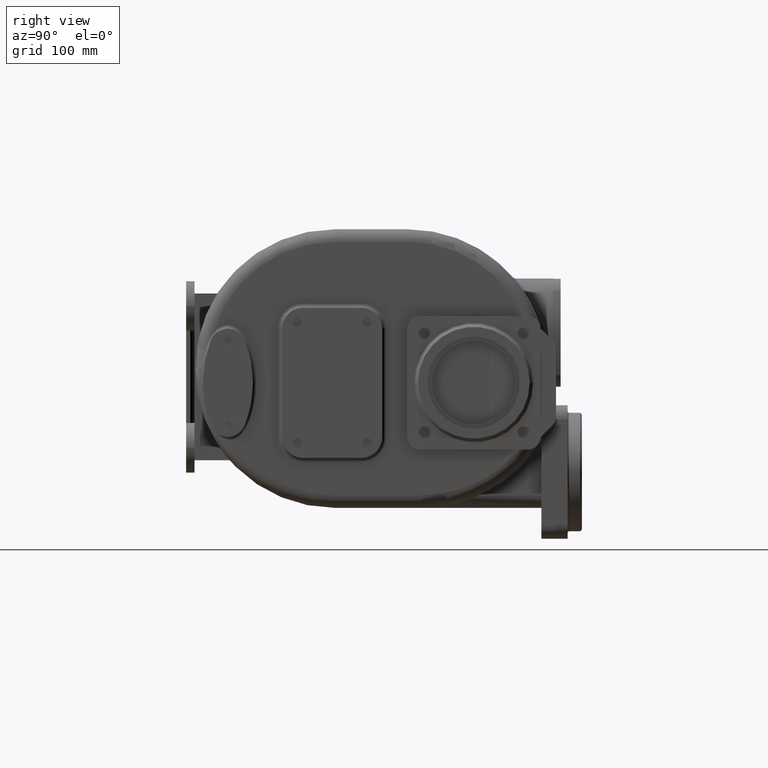
[diagram: clean part render]
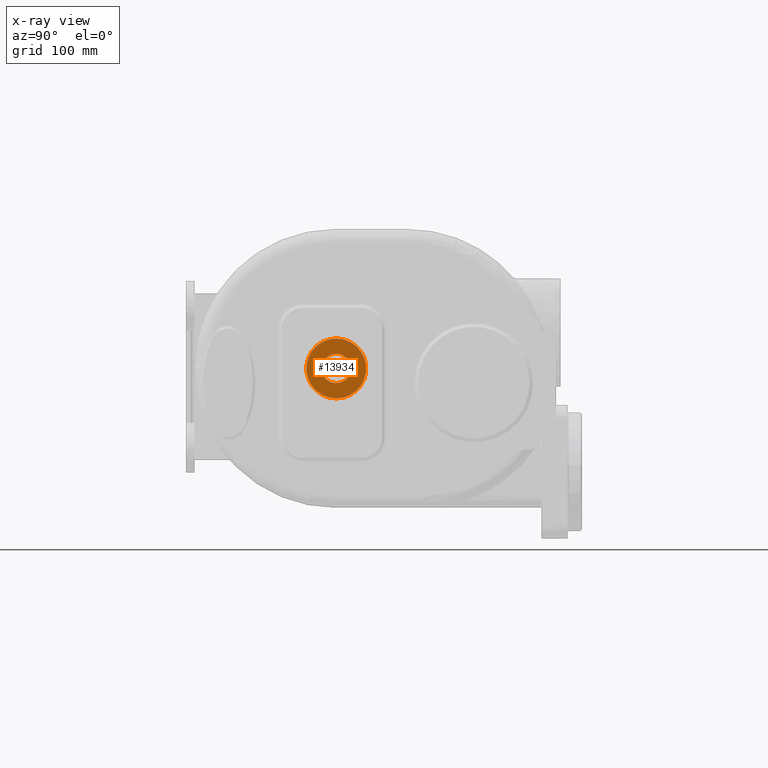
[diagram: x-ray — body ghosted, one internal face saturated and labeled with its STEP entity id]
A machine part, right view, then the same camera in x-ray: the body is ghosted and one INTERNAL B-rep face — a face not visible from any outside direction — is saturated and labeled: STEP entity #13934.
In plain terms, the highlighted planar face has unit normal (-1, 0, 0).
Its self-contained STEP definition (entity closure, byte-faithful):
#493=CARTESIAN_POINT('',(-3.355E2,1.7E2,0.E0));
#494=DIRECTION('',(-1.E0,0.E0,0.E0));
#495=DIRECTION('',(0.E0,0.E0,-1.E0));
#496=AXIS2_PLACEMENT_3D('',#493,#494,#495);
#498=CARTESIAN_POINT('',(-3.355E2,1.7E2,0.E0));
#499=DIRECTION('',(-1.E0,0.E0,0.E0));
#500=DIRECTION('',(0.E0,0.E0,1.E0));
#501=AXIS2_PLACEMENT_3D('',#498,#499,#500);
#503=CARTESIAN_POINT('',(-3.355E2,1.7E2,0.E0));
#504=DIRECTION('',(1.E0,0.E0,0.E0));
#505=DIRECTION('',(0.E0,0.E0,-1.E0));
#506=AXIS2_PLACEMENT_3D('',#503,#504,#505);
#508=CARTESIAN_POINT('',(-3.355E2,1.7E2,0.E0));
#509=DIRECTION('',(1.E0,0.E0,0.E0));
#510=DIRECTION('',(0.E0,0.E0,1.E0));
#511=AXIS2_PLACEMENT_3D('',#508,#509,#510);
#12999=CARTESIAN_POINT('',(-3.355E2,1.7E2,-1.75E1));
#13000=CARTESIAN_POINT('',(-3.355E2,1.7E2,1.75E1));
#13001=VERTEX_POINT('',#12999);
#13002=VERTEX_POINT('',#13000);
#13023=CARTESIAN_POINT('',(-3.355E2,1.7E2,-3.6E1));
#13024=CARTESIAN_POINT('',(-3.355E2,1.7E2,3.6E1));
#13025=VERTEX_POINT('',#13023);
#13026=VERTEX_POINT('',#13024);
#13918=CARTESIAN_POINT('',(-3.355E2,1.7E2,0.E0));
#13919=DIRECTION('',(-1.E0,0.E0,0.E0));
#13920=DIRECTION('',(0.E0,-1.E0,0.E0));
#13921=AXIS2_PLACEMENT_3D('',#13918,#13919,#13920);
#13922=PLANE('',#13921);
#13923=ORIENTED_EDGE('',*,*,#13908,.F.);
#13925=ORIENTED_EDGE('',*,*,#13924,.F.);
#13926=EDGE_LOOP('',(#13923,#13925));
#13927=FACE_OUTER_BOUND('',#13926,.F.);
#13929=ORIENTED_EDGE('',*,*,#13928,.F.);
#13931=ORIENTED_EDGE('',*,*,#13930,.F.);
#13932=EDGE_LOOP('',(#13929,#13931));
#13933=FACE_BOUND('',#13932,.F.);
#13934=ADVANCED_FACE('',(#13927,#13933),#13922,.T.);
#497=CIRCLE('',#496,3.6E1);
#502=CIRCLE('',#501,3.6E1);
#507=CIRCLE('',#506,1.75E1);
#512=CIRCLE('',#511,1.75E1);
#13908=EDGE_CURVE('',#13025,#13026,#497,.T.);
#13924=EDGE_CURVE('',#13026,#13025,#502,.T.);
#13928=EDGE_CURVE('',#13001,#13002,#507,.T.);
#13930=EDGE_CURVE('',#13002,#13001,#512,.T.);